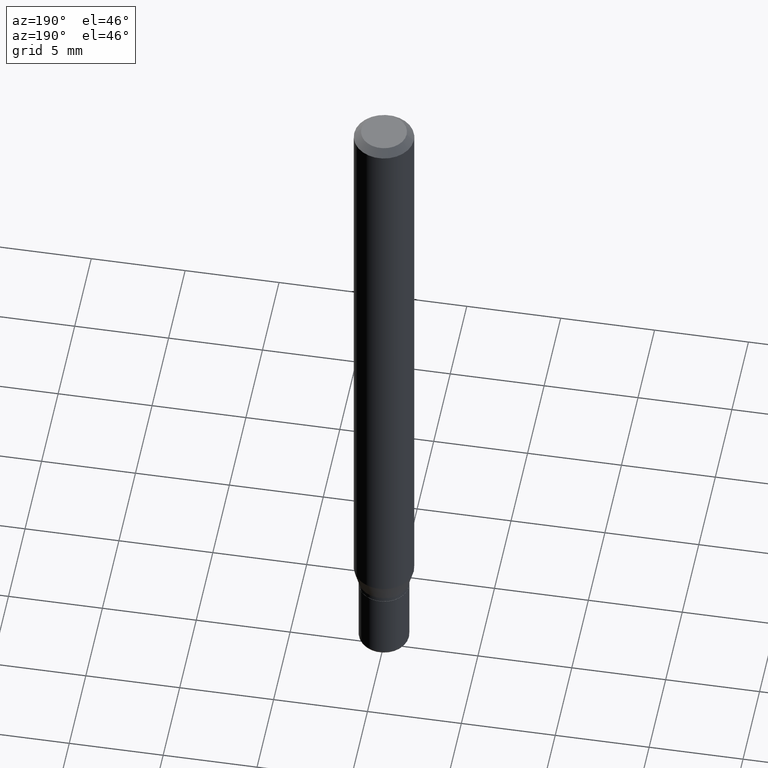
[diagram: clean part render]
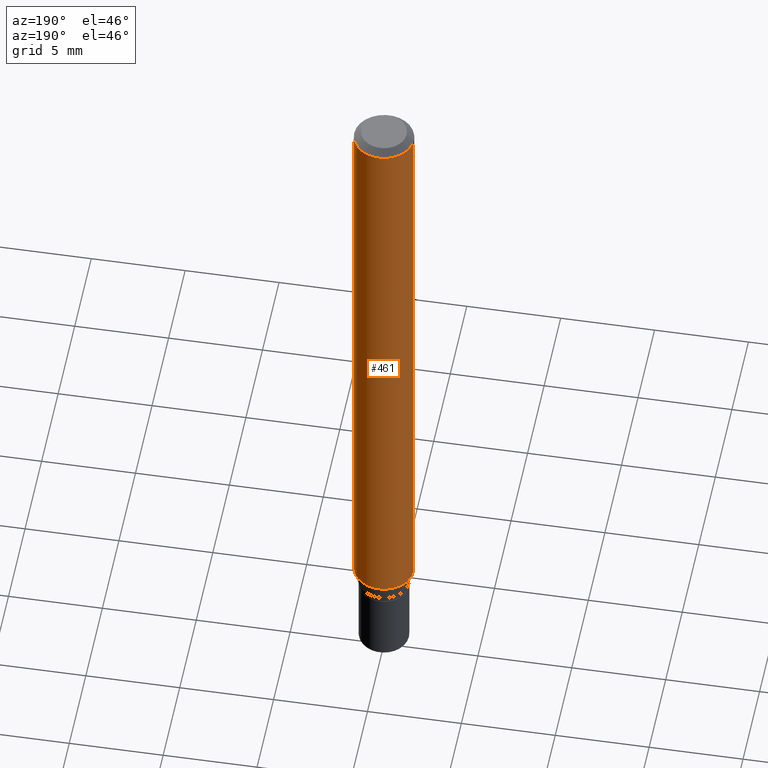
[diagram: same view with one face highlighted and labeled with its STEP entity id]
A machine part, auxiliary view. The second image highlights one B-rep face of the part: STEP entity #461.
In plain terms, the highlighted cylindrical surface (edge-blend (fillet) strip) has radius 1.5875 mm, axis along (-0, 0, 1).
Its self-contained STEP definition (entity closure, byte-faithful):
#7 = VERTEX_POINT ( 'NONE', #11 ) ;
#10 = CIRCLE ( 'NONE', #272, 0.06250000000000000000 ) ;
#11 = CARTESIAN_POINT ( 'NONE',  ( -0.06250000000000000000, -4.078005816656016392E-15, -1.295179491924311144 ) ) ;
#13 = EDGE_CURVE ( 'NONE', #7, #190, #299, .T. ) ;
#16 = LINE ( 'NONE', #211, #222 ) ;
#19 = CARTESIAN_POINT ( 'NONE',  ( 0.06250000000000000000, -4.888073874380378612E-16, -0.01499999999999970281 ) ) ;
#26 = ORIENTED_EDGE ( 'NONE', *, *, #476, .F. ) ;
#30 = ORIENTED_EDGE ( 'NONE', *, *, #118, .T. ) ;
#54 = CARTESIAN_POINT ( 'NONE',  ( 0.000000000000000000, 0.000000000000000000, 0.000000000000000000 ) ) ;
#55 = CARTESIAN_POINT ( 'NONE',  ( -0.06250000000000000000, -1.843144413444299442E-15, -0.01499999999999970281 ) ) ;
#60 = EDGE_CURVE ( 'NONE', #72, #190, #10, .T. ) ;
#63 = FACE_OUTER_BOUND ( 'NONE', #173, .T. ) ;
#72 = VERTEX_POINT ( 'NONE', #19 ) ;
#81 = ORIENTED_EDGE ( 'NONE', *, *, #13, .T. ) ;
#91 = CYLINDRICAL_SURFACE ( 'NONE', #158, 0.06250000000000000000 ) ;
#97 = DIRECTION ( 'NONE',  ( -2.445468806185136877E-29, 3.491481338843145188E-15, 1.000000000000000000 ) ) ;
#118 = EDGE_CURVE ( 'NONE', #251, #7, #220, .T. ) ;
#129 = DIRECTION ( 'NONE',  ( -2.445468806185136597E-29, 3.491481338843145583E-15, 1.000000000000000000 ) ) ;
#133 = DIRECTION ( 'NONE',  ( 1.000000000000000000, -6.982962677686262766E-15, 0.000000000000000000 ) ) ;
#144 = ORIENTED_EDGE ( 'NONE', *, *, #60, .F. ) ;
#158 = AXIS2_PLACEMENT_3D ( 'NONE', #54, #226, #493 ) ;
#173 = EDGE_LOOP ( 'NONE', ( #30, #81, #144, #26 ) ) ;
#185 = CARTESIAN_POINT ( 'NONE',  ( 0.06250000000000000000, -4.958530193861471467E-15, -1.295179491924311144 ) ) ;
#190 = VERTEX_POINT ( 'NONE', #55 ) ;
#211 = CARTESIAN_POINT ( 'NONE',  ( 0.06250000000000000000, -4.364351673553916694E-16, 3.047610484872459871E-30 ) ) ;
#219 = DIRECTION ( 'NONE',  ( -2.445468806185136597E-29, 3.491481338843145583E-15, 1.000000000000000000 ) ) ;
#220 = CIRCLE ( 'NONE', #286, 0.06250000000000000000 ) ;
#222 = VECTOR ( 'NONE', #377, 39.37007874015748143 ) ;
#226 = DIRECTION ( 'NONE',  ( -2.445468806185136597E-29, 3.491481338843145583E-15, 1.000000000000000000 ) ) ;
#251 = VERTEX_POINT ( 'NONE', #185 ) ;
#272 = AXIS2_PLACEMENT_3D ( 'NONE', #379, #219, #290 ) ;
#286 = AXIS2_PLACEMENT_3D ( 'NONE', #301, #129, #133 ) ;
#290 = DIRECTION ( 'NONE',  ( 1.000000000000000000, -6.982962677686266711E-15, 0.000000000000000000 ) ) ;
#299 = LINE ( 'NONE', #386, #347 ) ;
#301 = CARTESIAN_POINT ( 'NONE',  ( 3.167321045911617148E-29, -4.522095026506079008E-15, -1.295179491924311144 ) ) ;
#347 = VECTOR ( 'NONE', #97, 39.37007874015748143 ) ;
#377 = DIRECTION ( 'NONE',  ( -2.445468806185136877E-29, 3.491481338843145188E-15, 1.000000000000000000 ) ) ;
#379 = CARTESIAN_POINT ( 'NONE',  ( 3.668203209277632395E-31, -5.237222008264614861E-17, -0.01499999999999970281 ) ) ;
#386 = CARTESIAN_POINT ( 'NONE',  ( -0.06250000000000000000, 4.440892098500626162E-16, -3.074334431409316114E-30 ) ) ;
#461 = ADVANCED_FACE ( 'NONE', ( #63 ), #91, .T. ) ;
#476 = EDGE_CURVE ( 'NONE', #251, #72, #16, .T. ) ;
#493 = DIRECTION ( 'NONE',  ( 1.000000000000000000, -6.982962677686266711E-15, 4.876176775795935793E-29 ) ) ;